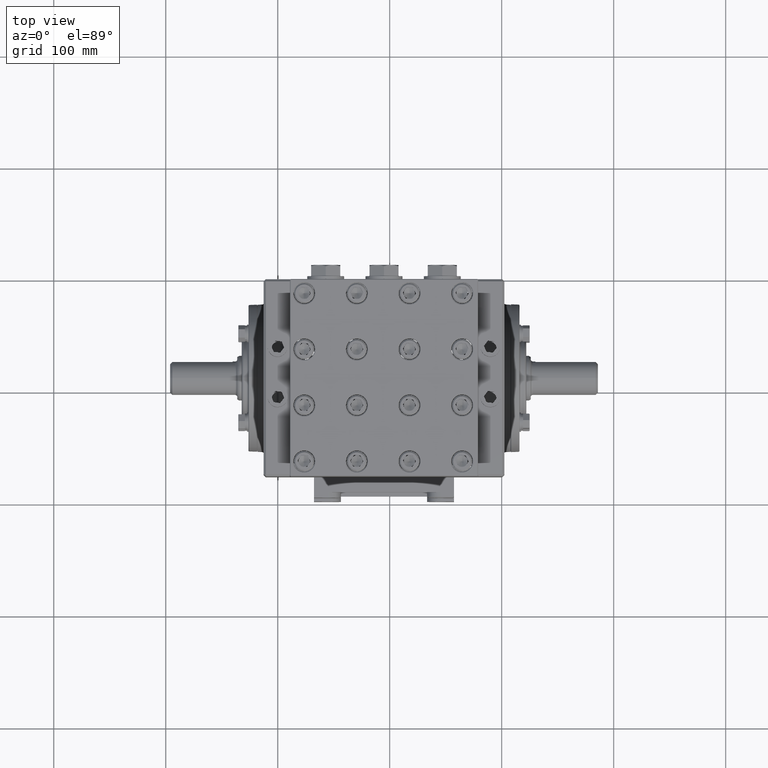
[diagram: clean part render]
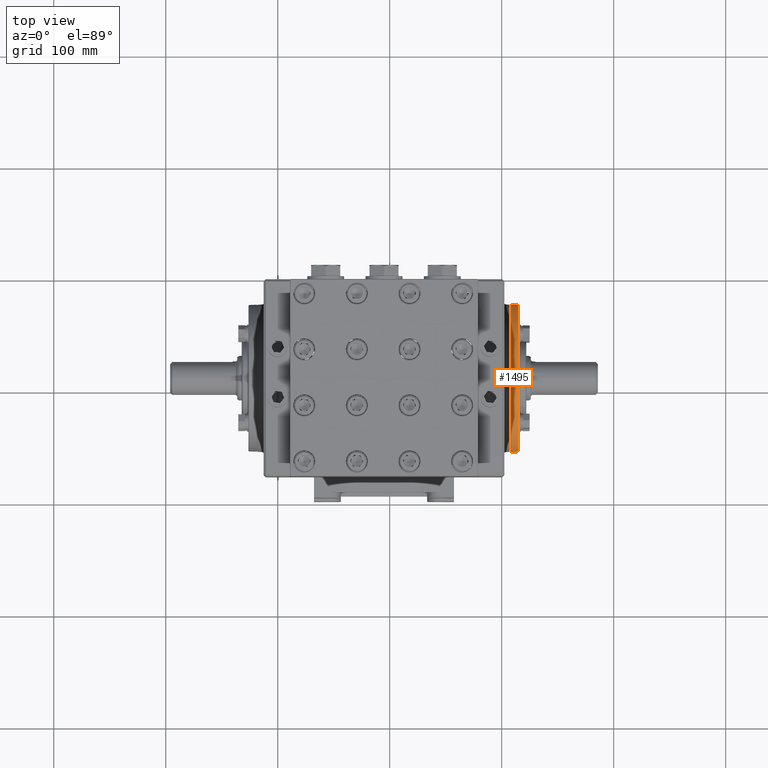
[diagram: same view with one face highlighted and labeled with its STEP entity id]
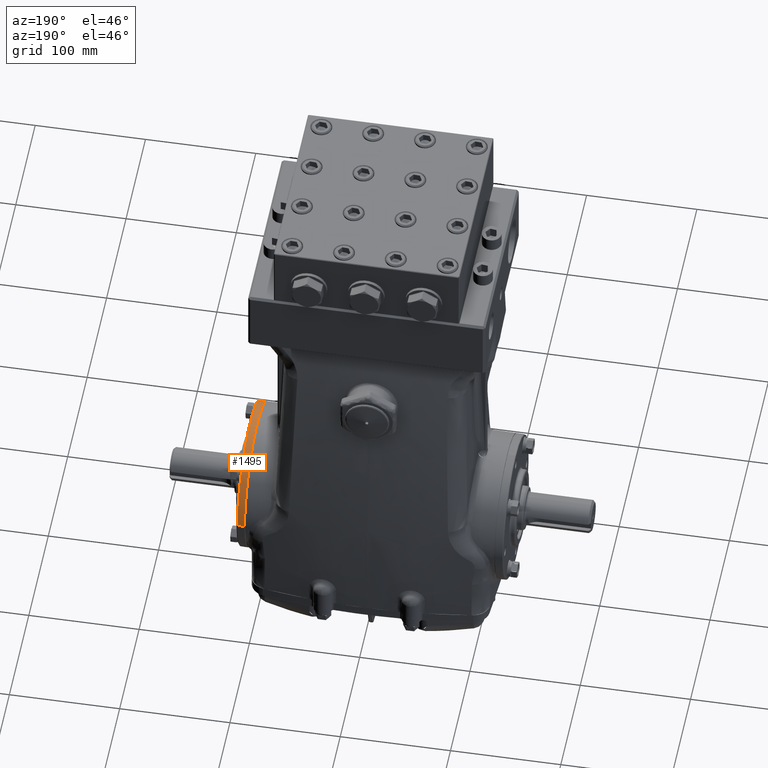
[diagram: same view with one face highlighted and labeled with its STEP entity id]
A machine part, top view. The second image highlights one B-rep face of the part: STEP entity #1495.
A second angle (auxiliary view) of the same face is appended — the face is thin or edge-on in the first view.
In plain terms, the highlighted conical surface has half-angle 2 deg.
Its self-contained STEP definition (entity closure, byte-faithful):
#1495 = ADVANCED_FACE ( 'NONE', ( #57340 ), #54776, .T. ) ;
#3055 = CARTESIAN_POINT ( 'NONE',  ( 4.247969388498634480, 0.4370930789018501739, -1.077167663901818912E-12 ) ) ;
#5032 = CARTESIAN_POINT ( 'NONE',  ( 4.247969388498635368, 3.035518275752243866, -1.077167663901818912E-12 ) ) ;
#5274 = CARTESIAN_POINT ( 'NONE',  ( 4.524933935612913238, 0.4370930789018501184, -1.077167663901818912E-12 ) ) ;
#6550 = ORIENTED_EDGE ( 'NONE', *, *, #17899, .T. ) ;
#8936 = EDGE_CURVE ( 'NONE', #84103, #57532, #71097, .T. ) ;
#11140 = DIRECTION ( 'NONE',  ( -2.103251201247360165E-16, -1.000000000000000000, 0.000000000000000000 ) ) ;
#12310 = CIRCLE ( 'NONE', #81700, 2.597738198883809524 ) ;
#12613 = CARTESIAN_POINT ( 'NONE',  ( 4.267642436274598161, -2.160645119981959184, -1.077485795078847561E-12 ) ) ;
#17899 = EDGE_CURVE ( 'NONE', #62353, #84103, #46373, .T. ) ;
#19264 = CARTESIAN_POINT ( 'NONE',  ( 4.524933935612913238, -2.151660302841381434, -1.077167663901818912E-12 ) ) ;
#20010 = ORIENTED_EDGE ( 'NONE', *, *, #8936, .T. ) ;
#21962 = VECTOR ( 'NONE', #35226, 39.37007874015748143 ) ;
#24281 = ORIENTED_EDGE ( 'NONE', *, *, #62322, .T. ) ;
#26058 = DIRECTION ( 'NONE',  ( 1.000000000000000000, -1.224606353822377258E-16, -0.000000000000000000 ) ) ;
#26440 = VERTEX_POINT ( 'NONE', #12613 ) ;
#32400 = CARTESIAN_POINT ( 'NONE',  ( 4.267642436274599049, 0.4370930789018501739, -1.077167663901818912E-12 ) ) ;
#33759 = DIRECTION ( 'NONE',  ( -2.110550980197792347E-16, -1.000000000000000000, 0.000000000000000000 ) ) ;
#35226 = DIRECTION ( 'NONE',  ( -0.9993908270190959842, -0.03489949670249506419, -4.273955692856433828E-18 ) ) ;
#36538 = CARTESIAN_POINT ( 'NONE',  ( 4.247969388498634480, -2.161332117948543630, -1.077485879211833566E-12 ) ) ;
#46373 = CIRCLE ( 'NONE', #84012, 2.588753381743231330 ) ;
#53895 = EDGE_LOOP ( 'NONE', ( #66837, #6550, #20010, #24281 ) ) ;
#54776 = CONICAL_SURFACE ( 'NONE', #75091, 2.598425196850393970, 0.03490658503988080391 ) ;
#54924 = CARTESIAN_POINT ( 'NONE',  ( 4.267642436274599049, 3.034831277785659420, -1.077167663901818912E-12 ) ) ;
#57340 = FACE_OUTER_BOUND ( 'NONE', #53895, .T. ) ;
#57532 = VERTEX_POINT ( 'NONE', #54924 ) ;
#60642 = DIRECTION ( 'NONE',  ( -0.9993908270190959842, 0.03489949670249531399, 0.000000000000000000 ) ) ;
#62322 = EDGE_CURVE ( 'NONE', #57532, #26440, #12310, .T. ) ;
#62353 = VERTEX_POINT ( 'NONE', #19264 ) ;
#64124 = LINE ( 'NONE', #36538, #21962 ) ;
#66837 = ORIENTED_EDGE ( 'NONE', *, *, #79465, .F. ) ;
#69940 = VECTOR ( 'NONE', #60642, 39.37007874015748143 ) ;
#71097 = LINE ( 'NONE', #5032, #69940 ) ;
#72282 = DIRECTION ( 'NONE',  ( -1.000000000000000000, 1.224606353822377258E-16, 0.000000000000000000 ) ) ;
#75091 = AXIS2_PLACEMENT_3D ( 'NONE', #3055, #72282, #85007 ) ;
#79465 = EDGE_CURVE ( 'NONE', #62353, #26440, #64124, .T. ) ;
#81700 = AXIS2_PLACEMENT_3D ( 'NONE', #32400, #26058, #11140 ) ;
#83467 = CARTESIAN_POINT ( 'NONE',  ( 4.524933935612914127, 3.025846460645081670, -1.077484694756092198E-12 ) ) ;
#84012 = AXIS2_PLACEMENT_3D ( 'NONE', #5274, #88108, #33759 ) ;
#84103 = VERTEX_POINT ( 'NONE', #83467 ) ;
#85007 = DIRECTION ( 'NONE',  ( 2.102695122396129669E-16, 1.000000000000000000, 0.000000000000000000 ) ) ;
#88108 = DIRECTION ( 'NONE',  ( -1.000000000000000000, 1.224606353822377258E-16, 0.000000000000000000 ) ) ;